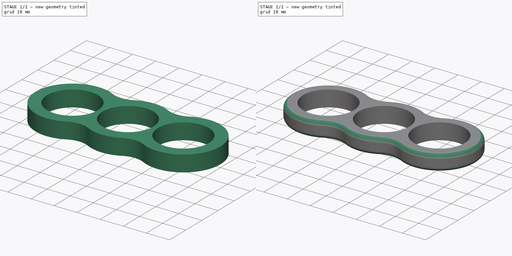
[diagram: build sequence overview — one tinted view per stage of 2, left to right]
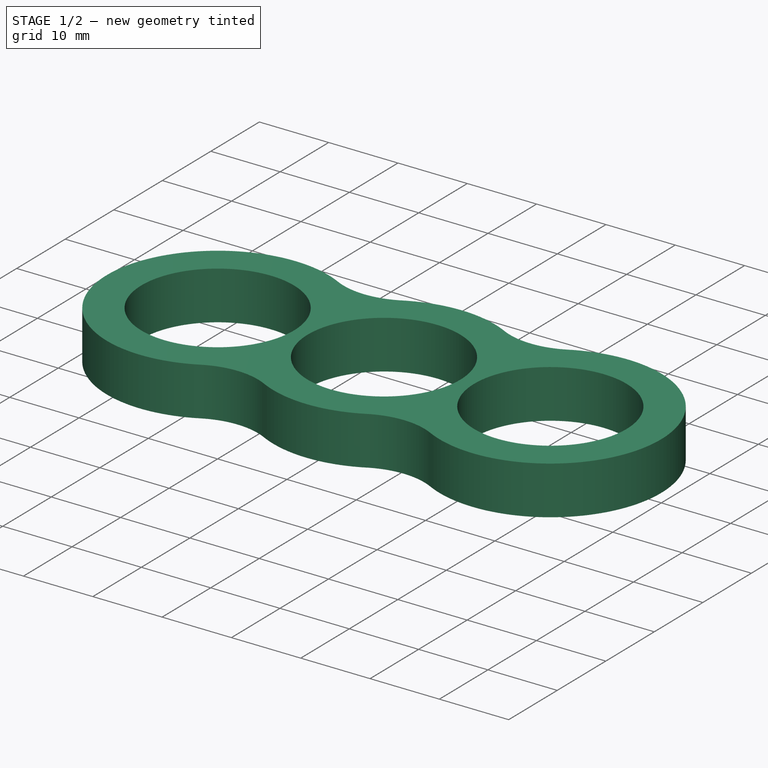
[diagram: stage 1 of 2 — iso view after this stage's code; geometry added in this stage tinted green]
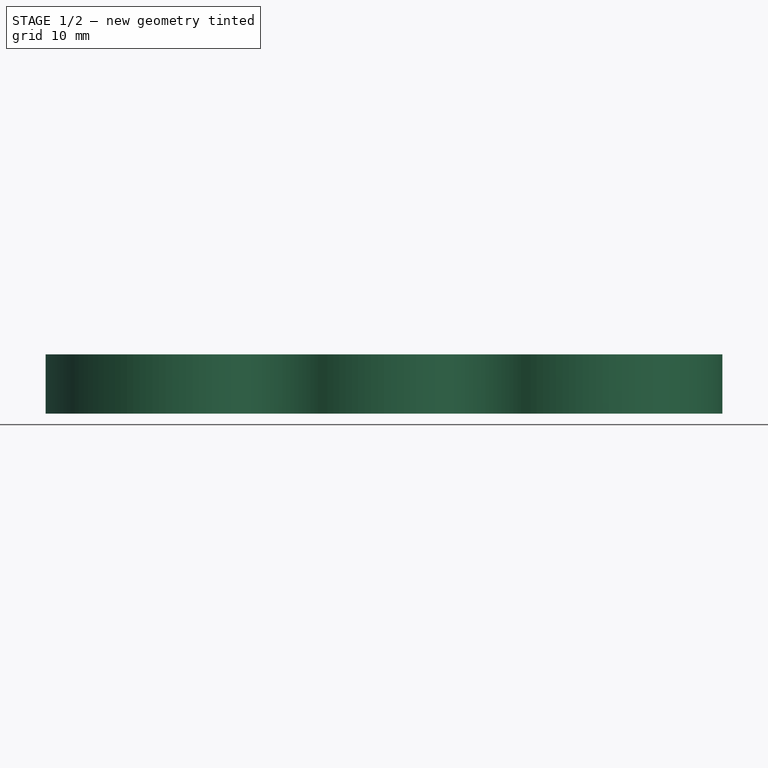
[diagram: stage 1 of 2 — front view after this stage's code; geometry added in this stage tinted green]
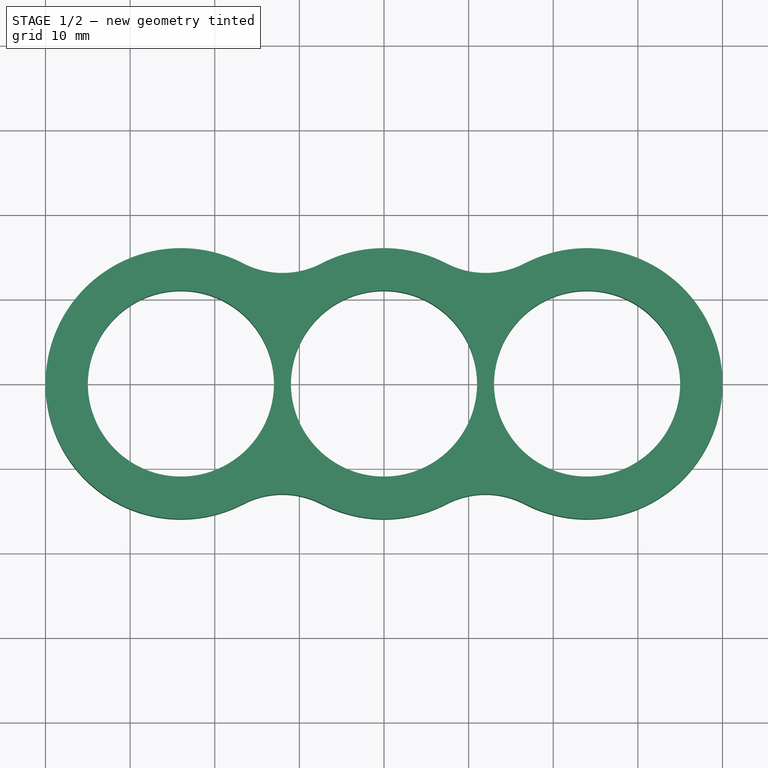
[diagram: stage 1 of 2 — top view after this stage's code; geometry added in this stage tinted green]
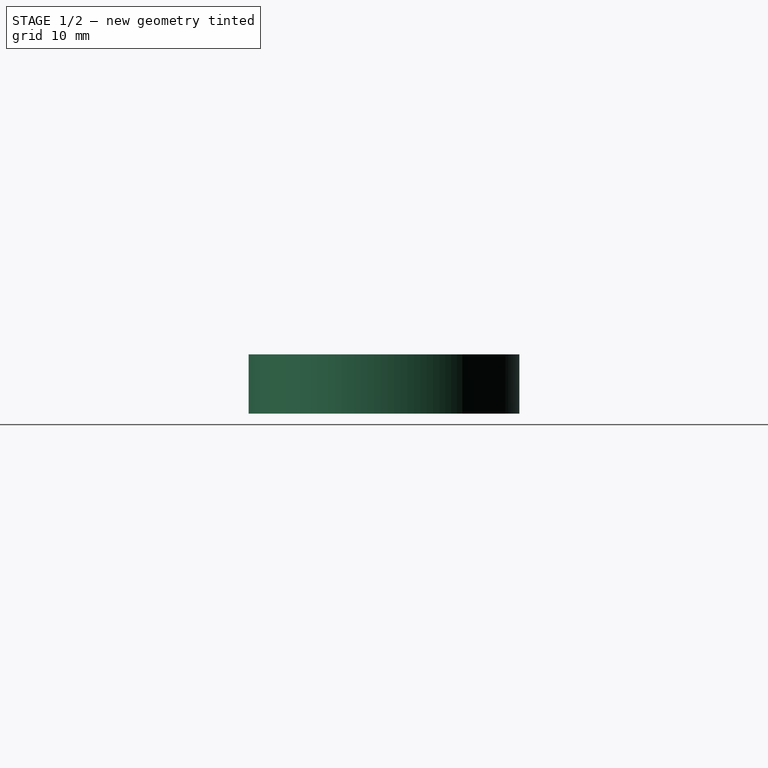
[diagram: stage 1 of 2 — right view after this stage's code; geometry added in this stage tinted green]
FCSTD DOCUMENT  (FreeCAD 0.16RUnknown)
Label: body-phi
License: All rights reserved
LicenseURL: http://en.wikipedia.org/wiki/All_rights_reserved
objects: Sketcher::SketchObject×1, PartDesign::Pad×1, Part::Fillet×1
note: 4 computed .brp shape members not serialized (recipe doc carries the construction recipe); baked Part::Feature solids carry a one-line shape summary decoded from their .brp

FEATURE [Sketcher::SketchObject] Sketch
  sketch-geometry (19):
    g0: ArcOfCircle CenterX=0 CenterY=0 CenterZ=0 NormalX=0 NormalY=0 NormalZ=1 Radius=16 StartAngle=4.23266 EndAngle=5.19212
    g1: ArcOfCircle CenterX=24 CenterY=0 CenterZ=0 NormalX=0 NormalY=0 NormalZ=1 Radius=16 StartAngle=4.23266 EndAngle=8.33371
    g2: ArcOfCircle CenterX=-24 CenterY=0 CenterZ=0 NormalX=0 NormalY=0 NormalZ=1 Radius=16 StartAngle=1.09107 EndAngle=5.19212
    g3: Circle CenterX=-24 CenterY=0 CenterZ=0 NormalX=0 NormalY=0 NormalZ=1 Radius=11
    g4: Circle CenterX=0 CenterY=0 CenterZ=0 NormalX=0 NormalY=0 NormalZ=1 Radius=11
    g5: Circle CenterX=24 CenterY=0 CenterZ=0 NormalX=0 NormalY=0 NormalZ=1 Radius=11
    g6: LineSegment [constr] StartX=-35 StartY=0 StartZ=0 EndX=-40 EndY=0 EndZ=0
    g7: LineSegment [constr] StartX=-24 StartY=11 StartZ=0 EndX=-24 EndY=0 EndZ=0
    g8: LineSegment [constr] StartX=-11 StartY=0 StartZ=0 EndX=-13 EndY=0 EndZ=0
    g9: ArcOfCircle CenterX=0 CenterY=0 CenterZ=0 NormalX=0 NormalY=0 NormalZ=1 Radius=16 StartAngle=1.09107 EndAngle=2.05053
    g10: LineSegment [constr] StartX=-40 StartY=0 StartZ=0 EndX=-35 EndY=0 EndZ=0
    g11: ArcOfCircle CenterX=-12 CenterY=23.0651 CenterZ=0 NormalX=0 NormalY=0 NormalZ=1 Radius=10 StartAngle=4.23266 EndAngle=5.19212
    g12: ArcOfCircle CenterX=12 CenterY=23.0651 CenterZ=0 NormalX=0 NormalY=0 NormalZ=1 Radius=10 StartAngle=4.23266 EndAngle=5.19211
    g13: LineSegment [constr] StartX=7.38463 StartY=14.1939 StartZ=0 EndX=12 EndY=23.0651 EndZ=0
    g14: ArcOfCircle CenterX=-12 CenterY=-23.0651 CenterZ=0 NormalX=0 NormalY=0 NormalZ=1 Radius=10 StartAngle=1.09107 EndAngle=2.05052
    g15: ArcOfCircle CenterX=12 CenterY=-23.0651 CenterZ=0 NormalX=0 NormalY=0 NormalZ=1 Radius=10 StartAngle=1.09107 EndAngle=2.05052
    g16: LineSegment [constr] StartX=-12 StartY=-23.0651 StartZ=0 EndX=-7.38463 EndY=-14.1939 EndZ=0
    g17: LineSegment [constr] StartX=12 StartY=-23.0651 StartZ=0 EndX=16.6154 EndY=-14.1939 EndZ=0
    g18: LineSegment [constr] StartX=-16.6154 StartY=14.1939 StartZ=0 EndX=-12 EndY=23.0651 EndZ=0
  constraints (58):
    c: Equal(g2,g0)
    c: Equal(g0,g1)
    c: Symmetric(g2,g1,g-2)
    c: Coincident(g0,g-1)
    c: Coincident(g3,g2)
    c: Coincident(g5,g1)
    c: Coincident(g4,g-1)
    c: Equal(g3,g4)
    c: Equal(g4,g5)
    c: PointOnObject(g1,g-1)
    c: Horizontal(g6)
    c: PointOnObject(g6,g3)
    c: PointOnObject(g6,g-1)
    c: Vertical(g7)
    c: Coincident(g7,g2)
    c: PointOnObject(g7,g3)
    c: DistanceY(g7,g7) = 11  'Bearing Outer Radius'
    c: Horizontal(g8)  'Constraint18'
    c: PointOnObject(g8,g3)
    c: PointOnObject(g8,g-1)
    c: PointOnObject(g8,g4)
    c: Equal(g0,g9)
    c: Coincident(g0,g9)
    c: PointOnObject(g10,g2)  'Constraint45'
    c: PointOnObject(g10,g3)  'Constraint42'
    c: Horizontal(g10)  'Constraint35'
    c: PointOnObject(g10,g-1)  'Constraint37'
    c: DistanceX(g6,g6) = 5  'Body Thickness'
    c: Tangent(g11,g2)  'Constraint33'
    c: Tangent(g11,g9)  'Constraint32'
    c: Coincident(g11,g2)  'Constraint31'
    c: Coincident(g11,g9)
    c: Distance(g11,g2) = 10  'Body Curve Radius'
    c: Tangent(g12,g1)
    c: Tangent(g9,g12)
    c: Coincident(g1,g12)
    c: Coincident(g9,g12)
    c: Coincident(g13,g9)
    c: Coincident(g13,g12)
    c: Tangent(g14,g2)
    c: Tangent(g14,g0)
    c: Coincident(g14,g2)
    c: Coincident(g14,g0)
    c: Tangent(g15,g0)
    c: Tangent(g15,g1)
    c: Coincident(g15,g0)
    c: Coincident(g15,g1)
    c: Coincident(g16,g14)
    c: Coincident(g16,g0)
    c: Coincident(g17,g15)
    c: Coincident(g17,g1)
    c: Coincident(g18,g2)
    c: Coincident(g18,g11)
    c: Equal(g18,g13)
    c: Equal(g13,g16)
    c: Equal(g16,g17)
    c: DistanceX(g8,g8) = 2  'Bearing Distance'
    c: Coincident(g10,g6)
FEATURE [PartDesign::Pad] Pad
  Length = 7
  Length2 = 100
  Sketch = -> Sketch
  Type = 0
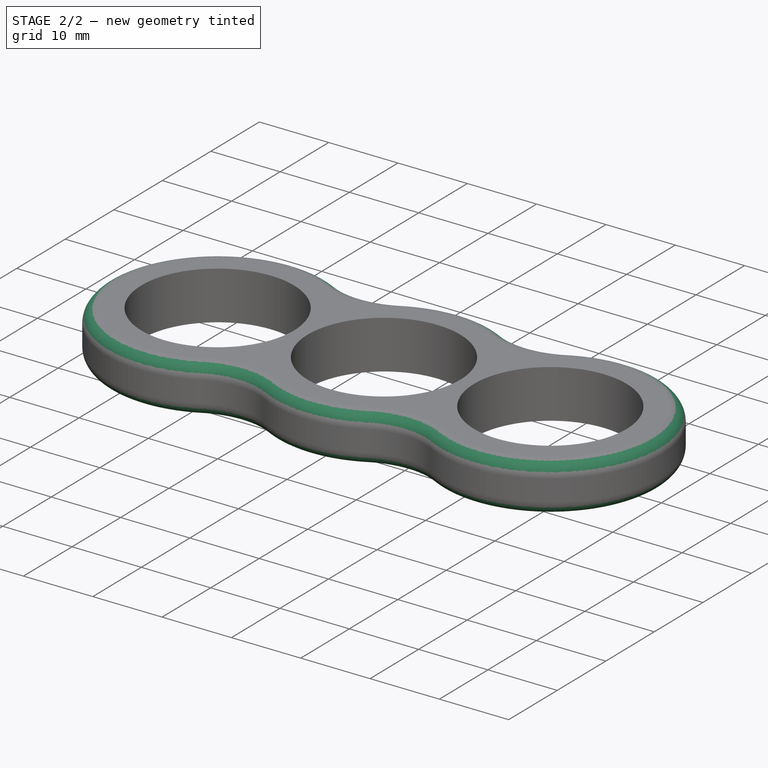
[diagram: stage 2 of 2 — iso view after this stage's code; geometry added in this stage tinted green]
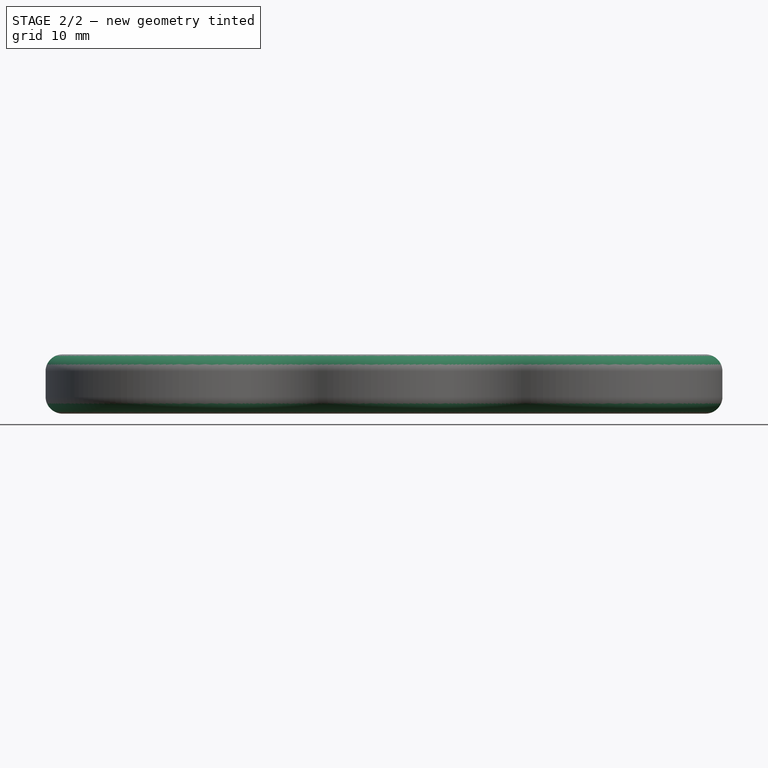
[diagram: stage 2 of 2 — front view after this stage's code; geometry added in this stage tinted green]
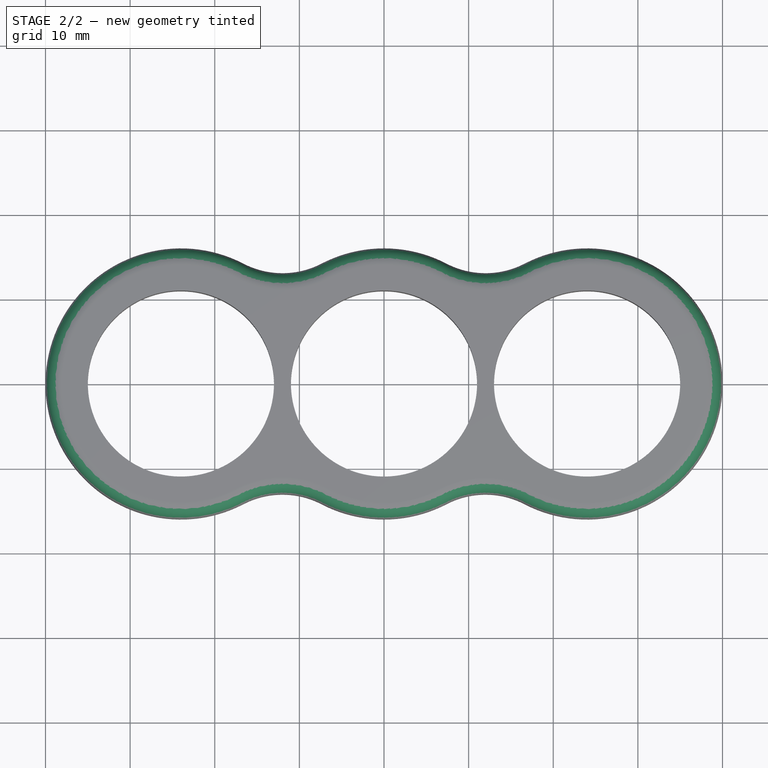
[diagram: stage 2 of 2 — top view after this stage's code; geometry added in this stage tinted green]
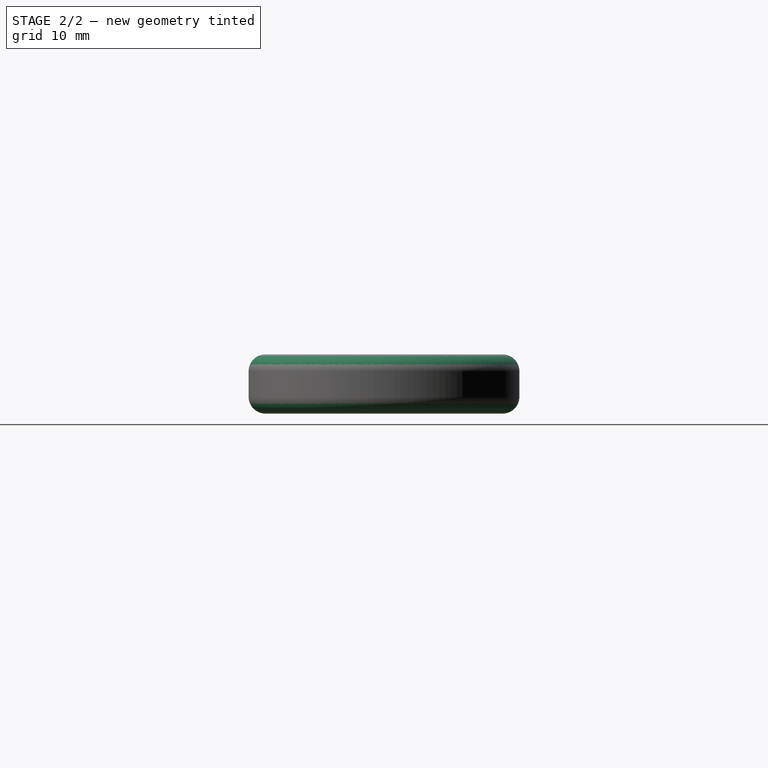
[diagram: stage 2 of 2 — right view after this stage's code; geometry added in this stage tinted green]
FEATURE [Part::Fillet] Fillet  label="Body"
  Base = -> Pad
  Edges = 2 edges r=2: [Edge15,Edge16]
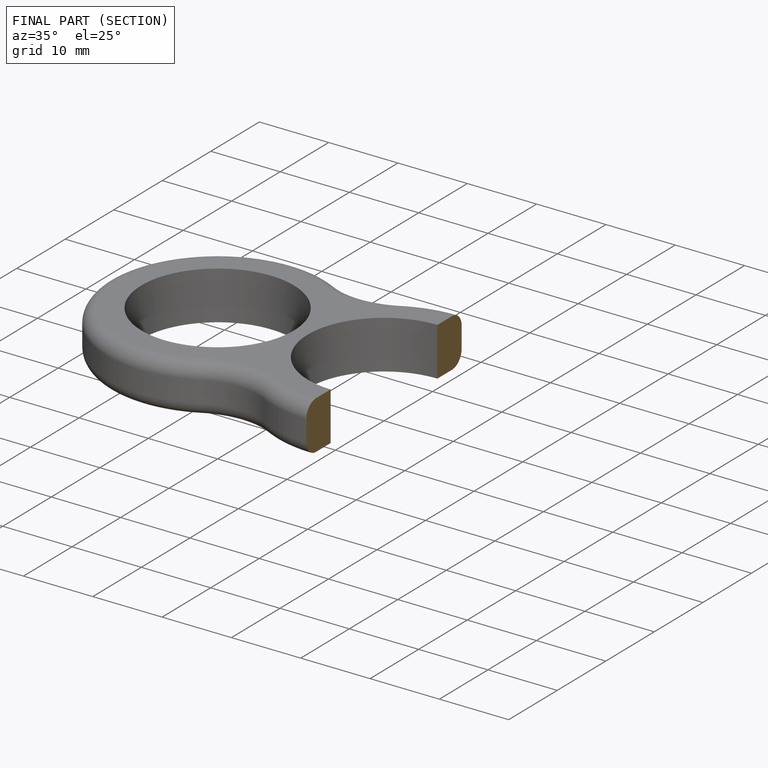
[diagram: finished part — half-section view (interior)]
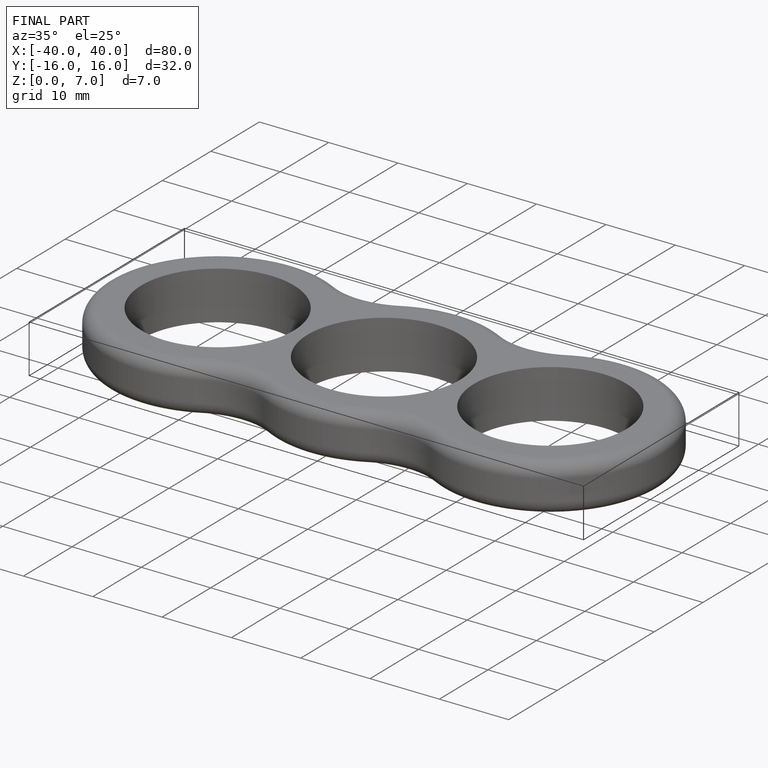
[diagram: finished part — iso view with bounding-box wireframe]
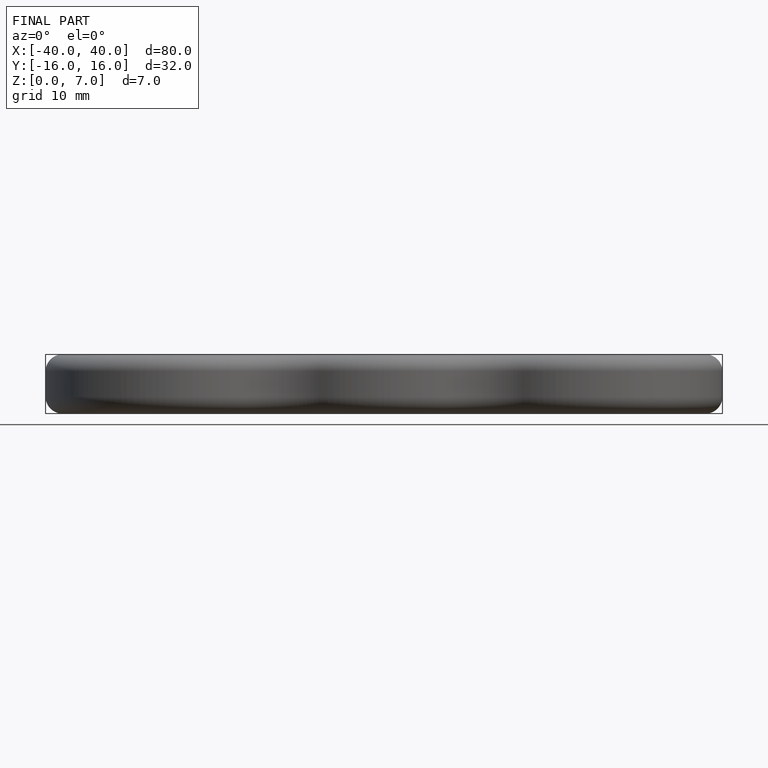
[diagram: finished part — front view with bounding-box wireframe]
